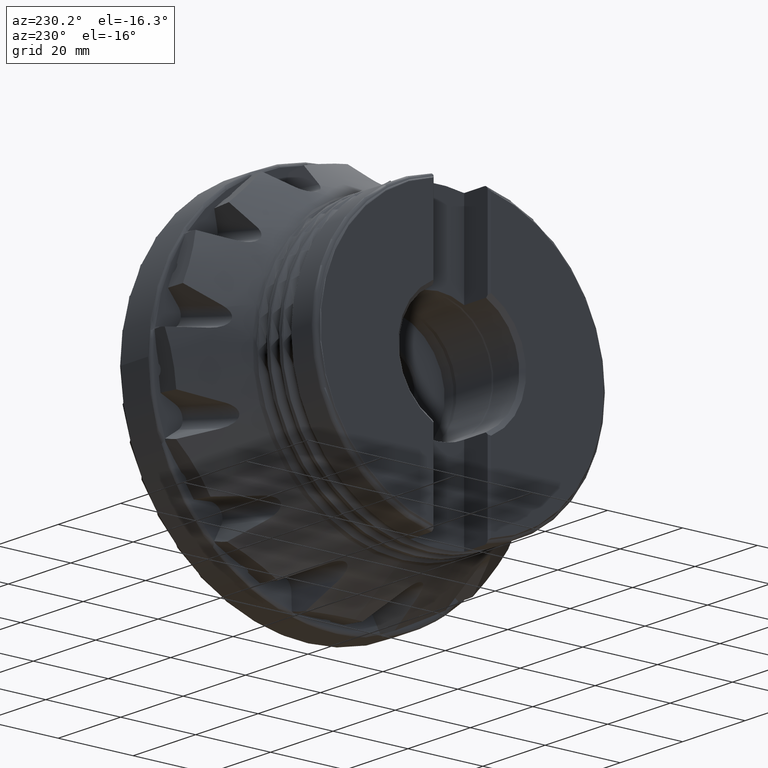
[diagram: clean part render]
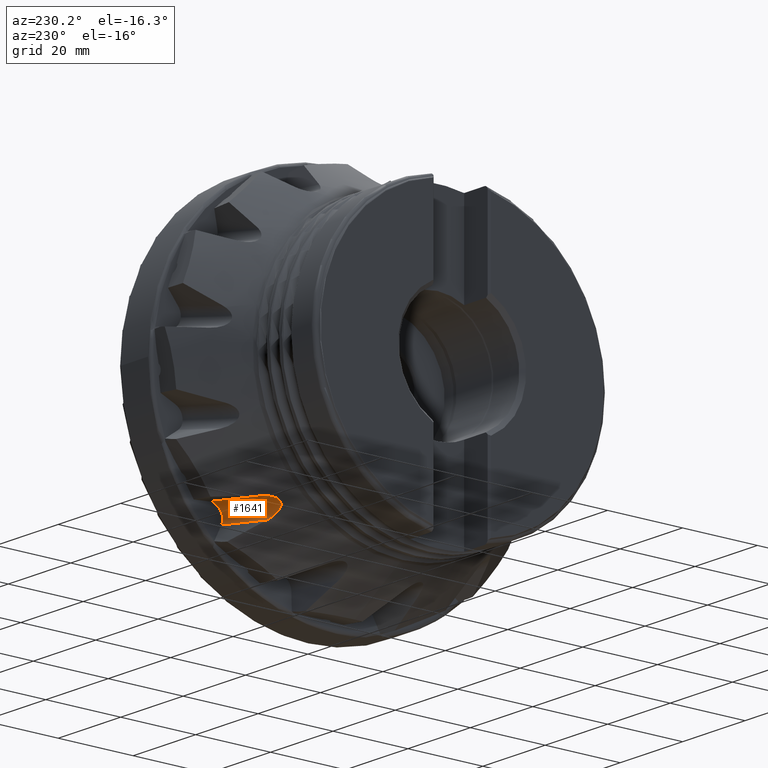
[diagram: same view with one face highlighted and labeled with its STEP entity id]
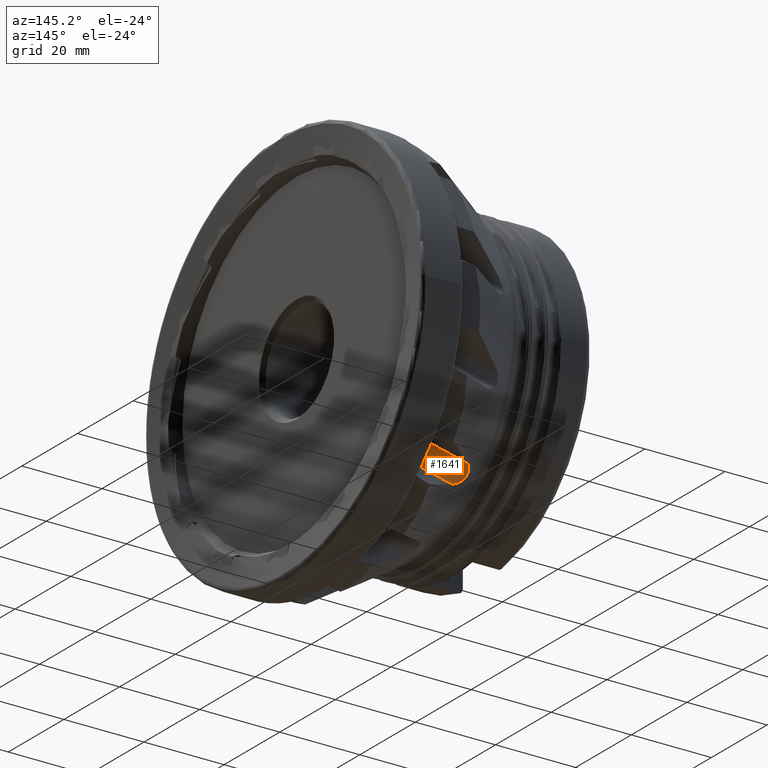
[diagram: same view with one face highlighted and labeled with its STEP entity id]
A machine part, auxiliary view. The second image highlights one B-rep face of the part: STEP entity #1641.
A second angle (auxiliary view) of the same face is appended — the face is thin or edge-on in the first view.
In plain terms, the highlighted cylindrical surface (edge-blend (fillet) strip) has radius 3 mm, axis along (0.9781, 0.1841, 0.0966).
Its self-contained STEP definition (entity closure, byte-faithful):
#81 = AXIS2_PLACEMENT_3D ( 'NONE', #3806, #8726, #10738 ) ;
#193 = B_SPLINE_CURVE_WITH_KNOTS ( 'NONE', 3,
 ( #2931, #8868, #10880, #4949, #11887, #5927, #12834, #6930, #964, #7920, #1961, #8916, #2976, #9913, #3985, #10924, #4987, #11917, #5981, #12876, #6968, #1004, #7970, #1996, #8956, #3020, #9952, #4019 ),
 .UNSPECIFIED., .F., .F.,
 ( 4, 2, 2, 2, 2, 2, 2, 2, 2, 2, 2, 2, 2, 4 ),
 ( 0.003306809670124593800, 0.004450953846130774500, 0.005595098022136955200, 0.006167170110140050300, 0.006739242198143145400, 0.007311314286146240600, 0.007883386374149335700, 0.008169422418150882800, 0.008455458462152429900, 0.009027530550155513800, 0.009599602638158599400, 0.01017167472616168500, 0.01131581890216784900, 0.01245996307817401300 ),
 .UNSPECIFIED. ) ;
#285 = CARTESIAN_POINT ( 'NONE',  ( -9.357551437929149800, 31.77933015670980800, -28.78452557167649300 ) ) ;
#413 = CARTESIAN_POINT ( 'NONE',  ( -9.062145787536502800, 31.53018530078809800, -29.03429440462263500 ) ) ;
#522 = CARTESIAN_POINT ( 'NONE',  ( -9.406091956663210900, 30.82795692868550200, -32.30306749858903700 ) ) ;
#801 = CARTESIAN_POINT ( 'NONE',  ( -9.357551437929149800, 31.77933015670980800, -28.78452557167649300 ) ) ;
#845 = CARTESIAN_POINT ( 'NONE',  ( -9.386993524146076200, 33.80409984287455700, -28.09372975136719200 ) ) ;
#964 = CARTESIAN_POINT ( 'NONE',  ( -24.10524478200938200, 27.88043953366114600, -32.17032617640926200 ) ) ;
#1004 = CARTESIAN_POINT ( 'NONE',  ( -25.05791973945115500, 29.39288936315919200, -29.96782717845165700 ) ) ;
#1198 = EDGE_CURVE ( 'NONE', #12274, #10896, #1794, .T. ) ;
#1389 = B_SPLINE_CURVE_WITH_KNOTS ( 'NONE', 3,
 ( #7494, #522, #8504, #2557, #9495, #3561, #10499, #4557, #11509, #5563, #12478, #6550 ),
 .UNSPECIFIED., .F., .F.,
 ( 4, 2, 2, 2, 2, 4 ),
 ( 0.002503611854600612300, 0.003309976742950738300, 0.003713159187125802400, 0.004116341631300856100, 0.004922706519650954000, 0.005729071408001051900 ),
 .UNSPECIFIED. ) ;
#1423 = ORIENTED_EDGE ( 'NONE', *, *, #11531, .F. ) ;
#1445 = CARTESIAN_POINT ( 'NONE',  ( -9.112053737301733800, 31.62235747467327600, -28.93776145308071400 ) ) ;
#1468 = CARTESIAN_POINT ( 'NONE',  ( -23.32021193226899300, 31.37936361501103000, -29.48769631609339800 ) ) ;
#1641 = ADVANCED_FACE ( 'NONE', ( #6042 ), #6318, .F. ) ;
#1668 = VECTOR ( 'NONE', #10107, 999.9999999999998900 ) ;
#1794 = LINE ( 'NONE', #2171, #1668 ) ;
#1815 = CARTESIAN_POINT ( 'NONE',  ( -9.358414057758167800, 31.93504928196782400, -28.65959422245205700 ) ) ;
#1961 = CARTESIAN_POINT ( 'NONE',  ( -24.55062071371715900, 27.89176717714894200, -31.79182220090585200 ) ) ;
#1996 = CARTESIAN_POINT ( 'NONE',  ( -24.65524497444157200, 30.00763740563581200, -29.71150291192370200 ) ) ;
#2171 = CARTESIAN_POINT ( 'NONE',  ( -30.29307496465218800, 27.02169277301269900, -34.60419174695986300 ) ) ;
#2409 = CARTESIAN_POINT ( 'NONE',  ( -9.357551437929169300, 31.15438744085537000, -29.45978412651280100 ) ) ;
#2457 = CARTESIAN_POINT ( 'NONE',  ( -9.275441856442297400, 31.74382240962483300, -28.81728582664523200 ) ) ;
#2459 = CARTESIAN_POINT ( 'NONE',  ( -9.391456005293894900, 34.00088764100070200, -28.11181436865492200 ) ) ;
#2557 = CARTESIAN_POINT ( 'NONE',  ( -9.389894131506730800, 30.65472602667283300, -31.64792459959944900 ) ) ;
#2585 = VERTEX_POINT ( 'NONE', #5780 ) ;
#2931 = CARTESIAN_POINT ( 'NONE',  ( -21.36006988507297400, 28.70296908822560800, -33.72178986628893000 ) ) ;
#2976 = CARTESIAN_POINT ( 'NONE',  ( -24.94026880828567600, 27.99671001257068400, -31.37450157176512600 ) ) ;
#2989 = VERTEX_POINT ( 'NONE', #1468 ) ;
#3020 = CARTESIAN_POINT ( 'NONE',  ( -23.88472320785216900, 30.85878647494458700, -29.52569989101478100 ) ) ;
#3561 = CARTESIAN_POINT ( 'NONE',  ( -9.381324416682487000, 30.61848874234960900, -31.24574865708104800 ) ) ;
#3806 = CARTESIAN_POINT ( 'NONE',  ( -30.91681003710542800, 29.62001283415663600, -33.24048817973981300 ) ) ;
#3985 = CARTESIAN_POINT ( 'NONE',  ( -25.13897463471121400, 28.14602780854118100, -31.07326648310845800 ) ) ;
#4019 = CARTESIAN_POINT ( 'NONE',  ( -23.32021193226899300, 31.37936361501103000, -29.48769631609339800 ) ) ;
#4557 = CARTESIAN_POINT ( 'NONE',  ( -9.371309279280261300, 30.64626231265468800, -30.70373571160064300 ) ) ;
#4648 = DIRECTION ( 'NONE',  ( 0.9781476007338083500, 0.1840966594383210100, 0.09662138046180679400 ) ) ;
#4834 = CARTESIAN_POINT ( 'NONE',  ( -9.363637259556615100, 32.44949869162234500, -28.36676116670876300 ) ) ;
#4949 = CARTESIAN_POINT ( 'NONE',  ( -22.66897030371556800, 28.17692568492646300, -33.09700398721158600 ) ) ;
#4987 = CARTESIAN_POINT ( 'NONE',  ( -25.24524974930183400, 28.29737075642480100, -30.84559590702030000 ) ) ;
#5302 = ORIENTED_EDGE ( 'NONE', *, *, #12259, .T. ) ;
#5420 = CARTESIAN_POINT ( 'NONE',  ( -9.119228533559688500, 31.34340633976982100, -29.24030401481174500 ) ) ;
#5563 = CARTESIAN_POINT ( 'NONE',  ( -9.360922559447267600, 30.87883159906243000, -29.92690672990130800 ) ) ;
#5780 = CARTESIAN_POINT ( 'NONE',  ( -9.357551437929169300, 31.15438744085537000, -29.45978412651280100 ) ) ;
#5826 = CARTESIAN_POINT ( 'NONE',  ( -9.371915643565119000, 33.01526275247645300, -28.17474688620824400 ) ) ;
#5927 = CARTESIAN_POINT ( 'NONE',  ( -23.47506529147481700, 27.96619027264184600, -32.61548774943202000 ) ) ;
#5981 = CARTESIAN_POINT ( 'NONE',  ( -25.31540137968131900, 28.62030535380218800, -30.48664397739321800 ) ) ;
#6042 = FACE_OUTER_BOUND ( 'NONE', #11858, .T. ) ;
#6318 = CYLINDRICAL_SURFACE ( 'NONE', #81, 2.999999999999994200 ) ;
#6402 = CARTESIAN_POINT ( 'NONE',  ( -9.058549245276282100, 31.49718177739038800, -29.06981734013042400 ) ) ;
#6550 = CARTESIAN_POINT ( 'NONE',  ( -9.357551437929169300, 31.15438744085537000, -29.45978412651280100 ) ) ;
#6811 = CARTESIAN_POINT ( 'NONE',  ( -9.382775342755827800, 33.60236633076007700, -28.09496990392970900 ) ) ;
#6930 = CARTESIAN_POINT ( 'NONE',  ( -23.94950296950223400, 27.89306950123544100, -32.28785625826981200 ) ) ;
#6968 = CARTESIAN_POINT ( 'NONE',  ( -25.20659206615555400, 29.08079528784163900, -30.14200285619422100 ) ) ;
#7013 = CARTESIAN_POINT ( 'NONE',  ( -21.36006988507297400, 28.70296908822560800, -33.72178986628893000 ) ) ;
#7342 = EDGE_CURVE ( 'NONE', #10896, #2585, #1389, .T. ) ;
#7397 = CARTESIAN_POINT ( 'NONE',  ( -9.088926448685242600, 31.59259920638918100, -28.96845568985911300 ) ) ;
#7494 = CARTESIAN_POINT ( 'NONE',  ( -9.413148013416989800, 30.95149314072289600, -32.54167340672518100 ) ) ;
#7814 = CARTESIAN_POINT ( 'NONE',  ( -9.391456005293894900, 34.00088764100070200, -28.11181436865492200 ) ) ;
#7920 = CARTESIAN_POINT ( 'NONE',  ( -24.40479920917427800, 27.87975133964462800, -31.92316956411711000 ) ) ;
#7970 = CARTESIAN_POINT ( 'NONE',  ( -24.96464114008460600, 29.54977926879566400, -29.89491705604625300 ) ) ;
#8395 = CARTESIAN_POINT ( 'NONE',  ( -9.197709031133740600, 31.70182945098570200, -28.85745231157741500 ) ) ;
#8504 = CARTESIAN_POINT ( 'NONE',  ( -9.399222328818389400, 30.73612952280063100, -32.04348863461156300 ) ) ;
#8629 = CARTESIAN_POINT ( 'NONE',  ( -31.25991889758152100, 29.88503542963629300, -30.27198024918816400 ) ) ;
#8726 = DIRECTION ( 'NONE',  ( 0.9781476007338082400, 0.1840966594383209900, 0.09662138046180678000 ) ) ;
#8868 = CARTESIAN_POINT ( 'NONE',  ( -21.68428925011448200, 28.55279184566117600, -33.58394352089825200 ) ) ;
#8916 = CARTESIAN_POINT ( 'NONE',  ( -24.81758476200840800, 27.95029711098767000, -31.51807185550106600 ) ) ;
#8956 = CARTESIAN_POINT ( 'NONE',  ( -24.41164505665389600, 30.29693911691849500, -29.63361185153652900 ) ) ;
#9398 = CARTESIAN_POINT ( 'NONE',  ( -9.357551437929149800, 31.77933015670980800, -28.78452557167649300 ) ) ;
#9470 = B_SPLINE_CURVE_WITH_KNOTS ( 'NONE', 3,
 ( #801, #1815, #10771, #4834, #11779, #5826, #12726, #6811, #845, #7814 ),
 .UNSPECIFIED., .F., .F.,
 ( 4, 2, 2, 2, 4 ),
 ( 4.821890804427873700E-005, 0.0006401847896406594100, 0.001232150671237040100, 0.001824116552833420700, 0.002416082434429801500 ),
 .UNSPECIFIED. ) ;
#9495 = CARTESIAN_POINT ( 'NONE',  ( -9.386935222187247500, 30.63663501582426800, -31.51474607079845200 ) ) ;
#9816 = ORIENTED_EDGE ( 'NONE', *, *, #1198, .F. ) ;
#9913 = CARTESIAN_POINT ( 'NONE',  ( -25.09399004875823300, 28.10445637112113500, -31.14866371392584200 ) ) ;
#9952 = CARTESIAN_POINT ( 'NONE',  ( -23.60688623262300100, 31.12416606566366500, -29.49804743401292100 ) ) ;
#10014 = VERTEX_POINT ( 'NONE', #2459 ) ;
#10107 = DIRECTION ( 'NONE',  ( 0.9781476007338083500, 0.1840966594383210100, 0.09662138046180679400 ) ) ;
#10135 = ORIENTED_EDGE ( 'NONE', *, *, #7342, .F. ) ;
#10347 = CARTESIAN_POINT ( 'NONE',  ( -9.289244498992562900, 31.19667936525790400, -29.40982336693555200 ) ) ;
#10499 = CARTESIAN_POINT ( 'NONE',  ( -9.378654733145483000, 30.61855130794098700, -31.10889700141675400 ) ) ;
#10738 = DIRECTION ( 'NONE',  ( -0.1849620582749226000, 0.9827456624166317500, 0.0000000000000000000 ) ) ;
#10771 = CARTESIAN_POINT ( 'NONE',  ( -9.359812766065401100, 32.10034780637499100, -28.55126480074972100 ) ) ;
#10880 = CARTESIAN_POINT ( 'NONE',  ( -22.01236429130998900, 28.41537288731841200, -33.43206840584558400 ) ) ;
#10896 = VERTEX_POINT ( 'NONE', #12417 ) ;
#10924 = CARTESIAN_POINT ( 'NONE',  ( -25.21454173823774200, 28.24209808299592700, -30.92214520605189400 ) ) ;
#11107 = LINE ( 'NONE', #8629, #11123 ) ;
#11123 = VECTOR ( 'NONE', #4648, 999.9999999999998900 ) ;
#11359 = CARTESIAN_POINT ( 'NONE',  ( -9.225763912247126400, 31.24170403105703300, -29.35713689906575800 ) ) ;
#11376 = ORIENTED_EDGE ( 'NONE', *, *, #12192, .T. ) ;
#11444 = B_SPLINE_CURVE_WITH_KNOTS ( 'NONE', 3,
 ( #2409, #10347, #11359, #5420, #12337, #6402, #413, #7397, #1445, #8395, #2457, #9398 ),
 .UNSPECIFIED., .F., .F.,
 ( 4, 2, 2, 2, 2, 4 ),
 ( 2.745141383242811300E-007, 0.0002815640718929644400, 0.0005628536296476045500, 0.0007034984085249138700, 0.0008441431874022231900, 0.001125432745156832900 ),
 .UNSPECIFIED. ) ;
#11509 = CARTESIAN_POINT ( 'NONE',  ( -9.367263810648569900, 30.70023428200840200, -30.44034003017304000 ) ) ;
#11531 = EDGE_CURVE ( 'NONE', #2585, #12454, #11444, .T. ) ;
#11717 = EDGE_CURVE ( 'NONE', #12454, #10014, #9470, .T. ) ;
#11779 = CARTESIAN_POINT ( 'NONE',  ( -9.366098159290951100, 32.63549430797708300, -28.29005054112439100 ) ) ;
#11858 = EDGE_LOOP ( 'NONE', ( #10135, #9816, #5302, #11376, #12164, #1423 ) ) ;
#11887 = CARTESIAN_POINT ( 'NONE',  ( -22.99411732079481000, 28.07678941886879900, -32.91585174041753000 ) ) ;
#11917 = CARTESIAN_POINT ( 'NONE',  ( -25.30929982360391200, 28.47727903163703900, -30.62545728713115200 ) ) ;
#12164 = ORIENTED_EDGE ( 'NONE', *, *, #11717, .F. ) ;
#12192 = EDGE_CURVE ( 'NONE', #2989, #10014, #11107, .T. ) ;
#12259 = EDGE_CURVE ( 'NONE', #12274, #2989, #193, .T. ) ;
#12274 = VERTEX_POINT ( 'NONE', #7013 ) ;
#12337 = CARTESIAN_POINT ( 'NONE',  ( -9.074731624241287900, 31.40229576827525200, -29.17365622023209000 ) ) ;
#12417 = CARTESIAN_POINT ( 'NONE',  ( -9.413148013416989800, 30.95149314072289600, -32.54167340672518100 ) ) ;
#12454 = VERTEX_POINT ( 'NONE', #285 ) ;
#12478 = CARTESIAN_POINT ( 'NONE',  ( -9.358729427853679900, 31.00115436570967700, -29.68452890087444000 ) ) ;
#12726 = CARTESIAN_POINT ( 'NONE',  ( -9.375255346222827400, 33.20863578040400200, -28.13572382195113200 ) ) ;
#12834 = CARTESIAN_POINT ( 'NONE',  ( -23.63423770536530100, 27.93599928385519600, -32.51053646740340500 ) ) ;
#12876 = CARTESIAN_POINT ( 'NONE',  ( -25.26354587764927500, 28.92152533222833800, -30.24582320449238200 ) ) ;